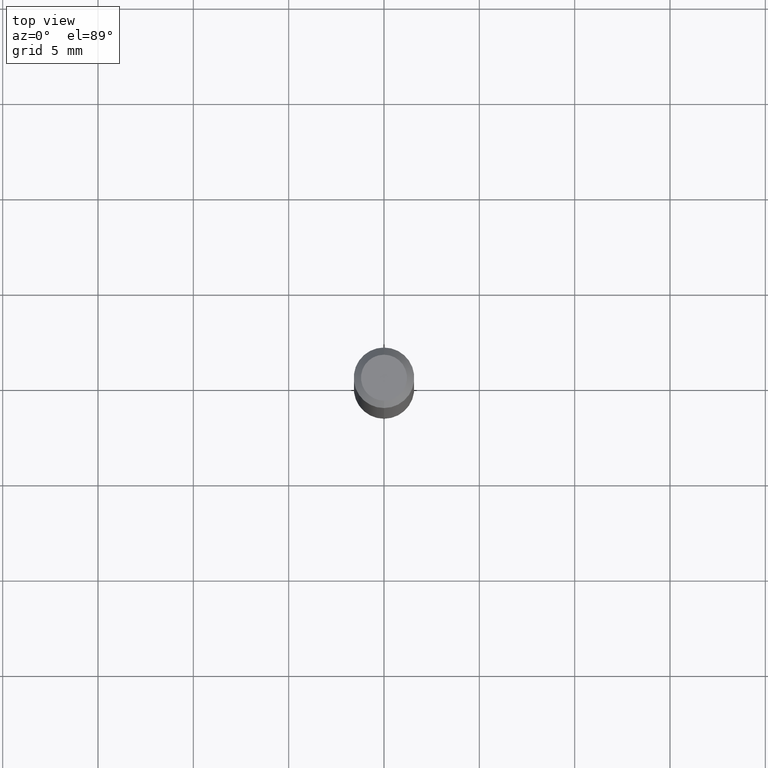
[diagram: clean part render]
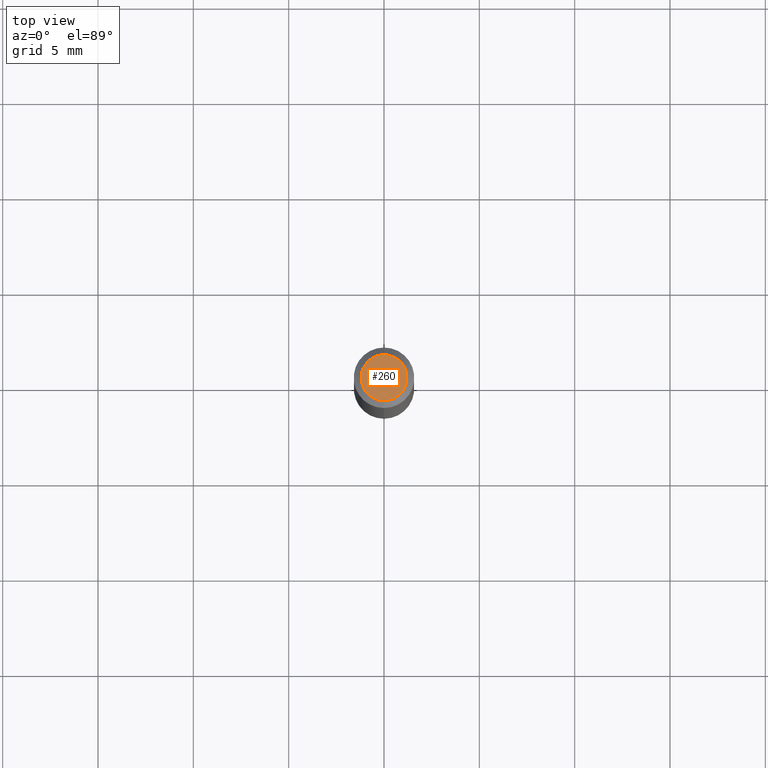
[diagram: same view with one face highlighted and labeled with its STEP entity id]
A machine part, top view. The second image highlights one B-rep face of the part: STEP entity #260.
In plain terms, the highlighted planar face has unit normal (0, -0, -1).
Its self-contained STEP definition (entity closure, byte-faithful):
#71 = CIRCLE ( 'NONE', #447, 0.04749999999999999362 ) ;
#78 = CARTESIAN_POINT ( 'NONE',  ( 3.840629472727447874E-16, 0.04749999999999999362, -1.747056831868805136E-16 ) ) ;
#96 = CARTESIAN_POINT ( 'NONE',  ( -3.773273898774340269E-16, -0.04749999999999999362, 1.569912176715254934E-16 ) ) ;
#102 = DIRECTION ( 'NONE',  ( -6.982962677686266711E-15, -1.000000000000000000, 3.491546324825326846E-15 ) ) ;
#107 = CARTESIAN_POINT ( 'NONE',  ( 3.316907271900976096E-16, 0.04749999999999999362, -1.702770668080417462E-16 ) ) ;
#144 = EDGE_CURVE ( 'NONE', #505, #304, #147, .T. ) ;
#147 = CIRCLE ( 'NONE', #420, 0.04749999999999999362 ) ;
#219 = PLANE ( 'NONE',  #438 ) ;
#231 = ORIENTED_EDGE ( 'NONE', *, *, #144, .T. ) ;
#250 = CARTESIAN_POINT ( 'NONE',  ( 2.165968448150382368E-46, -3.092543848319143153E-32, -8.857232757677519371E-18 ) ) ;
#260 = ADVANCED_FACE ( 'NONE', ( #373 ), #219, .F. ) ;
#274 = EDGE_CURVE ( 'NONE', #304, #505, #71, .T. ) ;
#288 = DIRECTION ( 'NONE',  ( -2.445423426716322459E-29, 3.491546324825326452E-15, 1.000000000000000000 ) ) ;
#292 = DIRECTION ( 'NONE',  ( 6.982962677686265922E-15, 1.000000000000000000, -3.491546324825326452E-15 ) ) ;
#304 = VERTEX_POINT ( 'NONE', #78 ) ;
#332 = DIRECTION ( 'NONE',  ( -6.982962677686266711E-15, -1.000000000000000000, 3.491546324825326846E-15 ) ) ;
#337 = EDGE_LOOP ( 'NONE', ( #510, #231 ) ) ;
#373 = FACE_OUTER_BOUND ( 'NONE', #337, .T. ) ;
#404 = CARTESIAN_POINT ( 'NONE',  ( 2.165968448150382368E-46, -3.092543848319143153E-32, -8.857232757677519371E-18 ) ) ;
#420 = AXIS2_PLACEMENT_3D ( 'NONE', #404, #441, #332 ) ;
#438 = AXIS2_PLACEMENT_3D ( 'NONE', #107, #484, #292 ) ;
#441 = DIRECTION ( 'NONE',  ( -2.445423426716322459E-29, 3.491546324825326452E-15, 1.000000000000000000 ) ) ;
#447 = AXIS2_PLACEMENT_3D ( 'NONE', #250, #288, #102 ) ;
#484 = DIRECTION ( 'NONE',  ( 2.445423426716322179E-29, -3.491546324825326452E-15, -1.000000000000000000 ) ) ;
#505 = VERTEX_POINT ( 'NONE', #96 ) ;
#510 = ORIENTED_EDGE ( 'NONE', *, *, #274, .T. ) ;